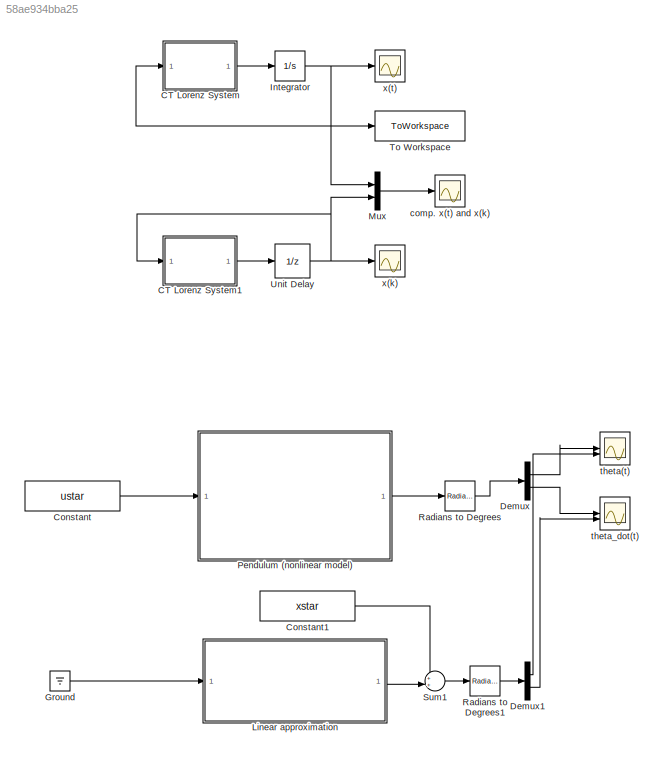
MODEL slx_58ae934bba25
KIND model
CONFIG AbsTol = auto
CONFIG EnableMultiTasking = off
CONFIG FixedStep = 0.001
CONFIG MaxStep = auto
CONFIG MinStep = auto
CONFIG RelTol = 1e-3
CONFIG SampleTimeConstraint = Unconstrained
CONFIG SolverName = ode3
CONFIG StartTime = 0.0
CONFIG StopTime = 100
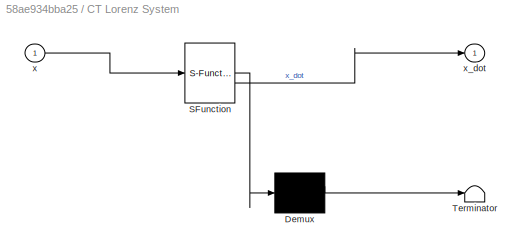
BLOCK [SubSystem] CT Lorenz System
  ErrorFcn = Stateflow.Translate.translate
  PermitHierarchicalResolution = ExplicitOnly
  SFBlockType = MATLAB Function
  TreatAsAtomicUnit = on
BLOCK [Demux] CT Lorenz System/ Demux 
  Outputs = 1
BLOCK [S-Function] CT Lorenz System/ SFunction 
  EnableBusSupport = on
  FunctionName = sf_sfun
  PortCounts = [1 2]
  SFcnIsStateOwnerBlock = off
  SFunctionDeploymentMode = off
  Tag = Stateflow S-Function 2
BLOCK [Terminator] CT Lorenz System/ Terminator 
BLOCK [Inport] CT Lorenz System/x
BLOCK [Outport] CT Lorenz System/x_dot
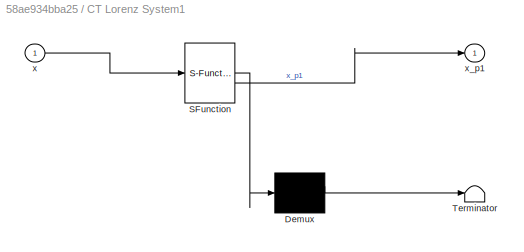
BLOCK [SubSystem] CT Lorenz System1
  ErrorFcn = Stateflow.Translate.translate
  PermitHierarchicalResolution = ExplicitOnly
  SFBlockType = MATLAB Function
  TreatAsAtomicUnit = on
BLOCK [Demux] CT Lorenz System1/ Demux 
  Outputs = 1
BLOCK [S-Function] CT Lorenz System1/ SFunction 
  EnableBusSupport = on
  FunctionName = sf_sfun
  PortCounts = [1 2]
  SFcnIsStateOwnerBlock = off
  SFunctionDeploymentMode = off
  Tag = Stateflow S-Function 1
BLOCK [Terminator] CT Lorenz System1/ Terminator 
BLOCK [Inport] CT Lorenz System1/x
BLOCK [Outport] CT Lorenz System1/x_p1
BLOCK [Constant] Constant
  Value = ustar
BLOCK [Constant] Constant1
  Value = xstar
  VectorParams1D = off
BLOCK [Demux] Demux
  Outputs = 2
BLOCK [Demux] Demux1
  Outputs = 2
BLOCK [Ground] Ground
BLOCK [Integrator] Integrator
  InitialCondition = [0;1;0]
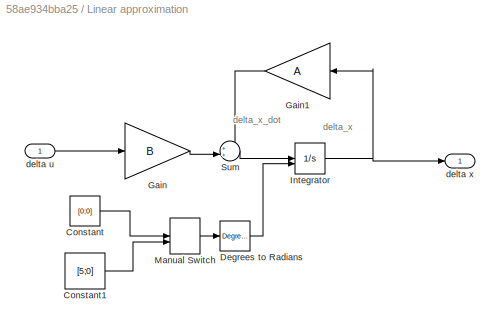
BLOCK [SubSystem] Linear approximation
BLOCK [Constant] Linear approximation/Constant
  Value = [0;0]
  VectorParams1D = off
BLOCK [Constant] Linear approximation/Constant1
  Value = [5;0]
  VectorParams1D = off
BLOCK [Reference] Linear approximation/Degrees to Radians  REF=simulink_extras/Transformations/Degrees to
Radians
  SourceBlock = simulink_extras/Transformations/Degrees to\nRadians
  SourceType = DegreesToRadians
BLOCK [Gain] Linear approximation/Gain
  Gain = B
  Multiplication = Matrix(K*u) (u vector)
BLOCK [Gain] Linear approximation/Gain1
  Gain = A
  Multiplication = Matrix(K*u) (u vector)
BLOCK [Integrator] Linear approximation/Integrator
  InitialCondition = [0.5;0]
  InitialConditionSource = external
BLOCK [ManualSwitch] Linear approximation/Manual Switch
BLOCK [Sum] Linear approximation/Sum
  Inputs = ++|
BLOCK [Inport] Linear approximation/delta u
BLOCK [Outport] Linear approximation/delta x
BLOCK [Mux] Mux
  DisplayOption = bar
  Inputs = 2
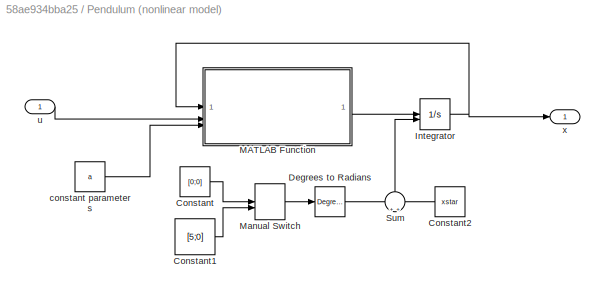
BLOCK [SubSystem] Pendulum (nonlinear model)
BLOCK [Constant] Pendulum (nonlinear model)/Constant
  Value = [0;0]
  VectorParams1D = off
BLOCK [Constant] Pendulum (nonlinear model)/Constant1
  Value = [5;0]
  VectorParams1D = off
BLOCK [Constant] Pendulum (nonlinear model)/Constant2
  NameLocation = top
  Value = xstar
  VectorParams1D = off
BLOCK [Reference] Pendulum (nonlinear model)/Degrees to Radians  REF=simulink_extras/Transformations/Degrees to
Radians
  SourceBlock = simulink_extras/Transformations/Degrees to\nRadians
  SourceType = DegreesToRadians
BLOCK [Integrator] Pendulum (nonlinear model)/Integrator
  InitialCondition = xstar
  InitialConditionSource = external
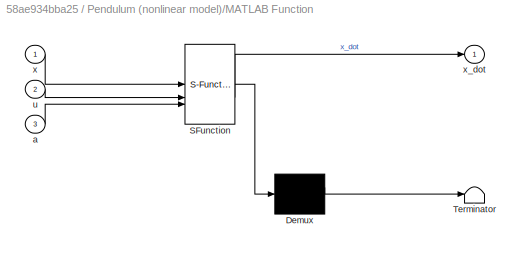
BLOCK [SubSystem] Pendulum (nonlinear model)/MATLAB Function
  ErrorFcn = Stateflow.Translate.translate
  PermitHierarchicalResolution = ExplicitOnly
  SFBlockType = MATLAB Function
  TreatAsAtomicUnit = on
BLOCK [Demux] Pendulum (nonlinear model)/MATLAB Function/ Demux 
  Outputs = 1
BLOCK [S-Function] Pendulum (nonlinear model)/MATLAB Function/ SFunction 
  EnableBusSupport = on
  FunctionName = sf_sfun
  PortCounts = [3 2]
  SFcnIsStateOwnerBlock = off
  SFunctionDeploymentMode = off
  Tag = Stateflow S-Function 3
BLOCK [Terminator] Pendulum (nonlinear model)/MATLAB Function/ Terminator 
BLOCK [Inport] Pendulum (nonlinear model)/MATLAB Function/a
  Port = 3
BLOCK [Inport] Pendulum (nonlinear model)/MATLAB Function/u
  Port = 2
BLOCK [Inport] Pendulum (nonlinear model)/MATLAB Function/x
BLOCK [Outport] Pendulum (nonlinear model)/MATLAB Function/x_dot
BLOCK [ManualSwitch] Pendulum (nonlinear model)/Manual Switch
BLOCK [Sum] Pendulum (nonlinear model)/Sum
  NameLocation = right
BLOCK [Constant] Pendulum (nonlinear model)/constant parameters
  Value = a
  VectorParams1D = off
BLOCK [Inport] Pendulum (nonlinear model)/u
BLOCK [Outport] Pendulum (nonlinear model)/x
BLOCK [Reference] Radians to Degrees  REF=simulink_extras/Transformations/Radians
to Degrees
  SourceBlock = simulink_extras/Transformations/Radians\nto Degrees
  SourceType = RadiansToDegrees
BLOCK [Reference] Radians to Degrees1  REF=simulink_extras/Transformations/Radians
to Degrees
  SourceBlock = simulink_extras/Transformations/Radians\nto Degrees
  SourceType = RadiansToDegrees
BLOCK [Sum] Sum1
  Inputs = ++|
BLOCK [ToWorkspace] To Workspace
  FixptAsFi = on
  MaxDataPoints = inf
  SampleTime = -1
  VariableName = x
BLOCK [UnitDelay] Unit Delay
  HasFrameUpgradeWarning = on
  InitialCondition = [0;1;0]
  SampleTime = 1e-3
BLOCK [Scope] comp. x(t) and x(k)
  Floating = off
  NumInputPorts = 1
  ScopeSpecificationString = Simulink.scopes.TimeScopeBlockCfg('CurrentConfiguration', extmgr.ConfigurationSet(extmgr.Configuration('Core','General UI',true),extmgr.Configuration('Core','Source UI',true),extmgr.Configuration('Sources','WiredSimulink',true,'DataLoggingVariableName','ScopeData2'),extmgr.Configuration('Visuals','Time Domain',true,'SerializedDisplays',{struct('MinYLimReal','-29.05769','MaxYLimReal','49.41518','YL...<+1436ch>
BLOCK [Scope] theta(t)
  Floating = off
  NumInputPorts = 2
  ScopeSpecificationString = Simulink.scopes.TimeScopeBlockCfg('CurrentConfiguration', extmgr.ConfigurationSet(extmgr.Configuration('Core','General UI',true),extmgr.Configuration('Core','Source UI',true),extmgr.Configuration('Sources','WiredSimulink',true,'DataLoggingVariableName','ScopeData3'),extmgr.Configuration('Visuals','Time Domain',true,'SerializedDisplays',{struct('MinYLimReal','35.00000','MaxYLimReal','55.00000','YLa...<+1393ch>
BLOCK [Scope] theta_dot(t)
  Floating = off
  NumInputPorts = 2
  ScopeSpecificationString = Simulink.scopes.TimeScopeBlockCfg('CurrentConfiguration', extmgr.ConfigurationSet(extmgr.Configuration('Core','General UI',true),extmgr.Configuration('Core','Source UI',true),extmgr.Configuration('Sources','WiredSimulink',true,'DataLoggingVariableName','ScopeData4'),extmgr.Configuration('Visuals','Time Domain',true,'SerializedDisplays',{struct('MinYLimReal','-1.00000','MaxYLimReal','1.00000','YLab...<+1406ch>
BLOCK [Scope] x(k)
  Floating = off
  NumInputPorts = 1
  ScopeSpecificationString = Simulink.scopes.TimeScopeBlockCfg('CurrentConfiguration', extmgr.ConfigurationSet(extmgr.Configuration('Core','General UI',true),extmgr.Configuration('Core','Source UI',true),extmgr.Configuration('Sources','WiredSimulink',true,'DataLoggingVariableName','ScopeData1'),extmgr.Configuration('Visuals','Time Domain',true,'SerializedDisplays',{struct('MinYLimReal','-32.62637','MaxYLimReal','57.93669','YL...<+1436ch>
BLOCK [Scope] x(t)
  Floating = off
  NumInputPorts = 1
  ScopeSpecificationString = Simulink.scopes.TimeScopeBlockCfg('CurrentConfiguration', extmgr.ConfigurationSet(extmgr.Configuration('Core','General UI',true),extmgr.Configuration('Core','Source UI',true),extmgr.Configuration('Sources','WiredSimulink',true),extmgr.Configuration('Visuals','Time Domain',true,'SerializedDisplays',{struct('MinYLimReal','-33.06119','MaxYLimReal','57.4175','YLabelReal','','MinYLimMag','0.00000','Max...<+1393ch>
ANNOTATION Linear approximation: delta_x
ANNOTATION Linear approximation: delta_x_dot
LINE CT Lorenz System1:1 -> Unit Delay:1
LINE CT Lorenz System:1 -> Integrator:1
LINE Constant1:1 -> Sum1:1
LINE Constant:1 -> Pendulum (nonlinear model):1
LINE Demux1:1 -> theta(t):2
LINE Demux1:2 -> theta_dot(t):2
LINE Demux:1 -> theta(t):1
LINE Demux:2 -> theta_dot(t):1
LINE Ground:1 -> Linear approximation:1
NET Integrator:1 -> CT Lorenz System:1, Mux:1, To Workspace:1, x(t):1
LINE Linear approximation/Constant1:1 -> Linear approximation/Manual Switch:2
LINE Linear approximation/Constant:1 -> Linear approximation/Manual Switch:1
LINE Linear approximation/Degrees to Radians:1 -> Linear approximation/Integrator:2
LINE Linear approximation/Gain1:1 -> Linear approximation/Sum:1
LINE Linear approximation/Gain:1 -> Linear approximation/Sum:2
NET Linear approximation/Integrator:1 -> Linear approximation/Gain1:1, Linear approximation/delta x:1
LINE Linear approximation/Manual Switch:1 -> Linear approximation/Degrees to Radians:1
LINE Linear approximation/Sum:1 -> Linear approximation/Integrator:1
LINE Linear approximation/delta u:1 -> Linear approximation/Gain:1
LINE Linear approximation:1 -> Sum1:2
LINE Mux:1 -> comp. x(t) and x(k):1
LINE Pendulum (nonlinear model)/Constant1:1 -> Pendulum (nonlinear model)/Manual Switch:2
LINE Pendulum (nonlinear model)/Constant2:1 -> Pendulum (nonlinear model)/Sum:2
LINE Pendulum (nonlinear model)/Constant:1 -> Pendulum (nonlinear model)/Manual Switch:1
LINE Pendulum (nonlinear model)/Degrees to Radians:1 -> Pendulum (nonlinear model)/Sum:1
NET Pendulum (nonlinear model)/Integrator:1 -> Pendulum (nonlinear model)/MATLAB Function:1, Pendulum (nonlinear model)/x:1
LINE Pendulum (nonlinear model)/MATLAB Function:1 -> Pendulum (nonlinear model)/Integrator:1
LINE Pendulum (nonlinear model)/Manual Switch:1 -> Pendulum (nonlinear model)/Degrees to Radians:1
LINE Pendulum (nonlinear model)/Sum:1 -> Pendulum (nonlinear model)/Integrator:2
LINE Pendulum (nonlinear model)/constant parameters:1 -> Pendulum (nonlinear model)/MATLAB Function:3
LINE Pendulum (nonlinear model)/u:1 -> Pendulum (nonlinear model)/MATLAB Function:2
LINE Pendulum (nonlinear model):1 -> Radians to Degrees:1
LINE Radians to Degrees1:1 -> Demux1:1
LINE Radians to Degrees:1 -> Demux:1
LINE Sum1:1 -> Radians to Degrees1:1
NET Unit Delay:1 -> CT Lorenz System1:1, Mux:2, x(k):1
note: NET lines group one-source signal fan-out (src -> all destinations, sorted); 1:1 wires keep LINE
CHART CT Lorenz System states=1 transitions=1
  STATE_LABEL 'eML_blk_kernel()'
  STATE_LABEL 'SCRIPT:\nfunction x_dot = f(x) % nonlinear mapping\n\nrho = 28;\nsigma = 10;\nbeta = 8/3;\n\nx_dot = [ sigma*(x(2) - x(1))  ;\n          x(1)*(rho-x(3))-x(2) ; \n          x(1)*x(2)-beta*x(3) ];'
CHART Pendulum (nonlinear model)/MATLAB Function states=1 transitions=1
  STATE_LABEL 'eML_blk_kernel()'
  STATE_LABEL 'SCRIPT:\nfunction x_dot = f(x,u,a)\n\n% a is the vector of constant parameters\nm = a(1);\ng = a(2);\nl = a(3);\nd = a(4);\n\nx_dot = [ x(2) ; 1/(m*l^2)*(-m*g*l*sin(x(1))-d*x(2)+u) ];\n'
CHART CT Lorenz System1 states=1 transitions=1
  STATE_LABEL 'eML_blk_kernel()'
  STATE_LABEL 'SCRIPT:\nfunction x_p1 = fp(x) % nonlinear mapping f "prime" (discrete-time)\n% x_p1 means x(k+1)\nrho = 28;\nsigma = 10;\nbeta = 8/3;\n\nTs = 1e-3; % sampling time\n\nx_p1 = x + Ts*[ sigma*(x(2) - x(1))  ;\n                x(1)*(rho-x(3))-x(2) ; \n                x(1)*x(2)-beta*x(3) ];\n'
CHART  states=0 transitions=0
CHART  states=0 transitions=0
CHART  states=0 transitions=0
